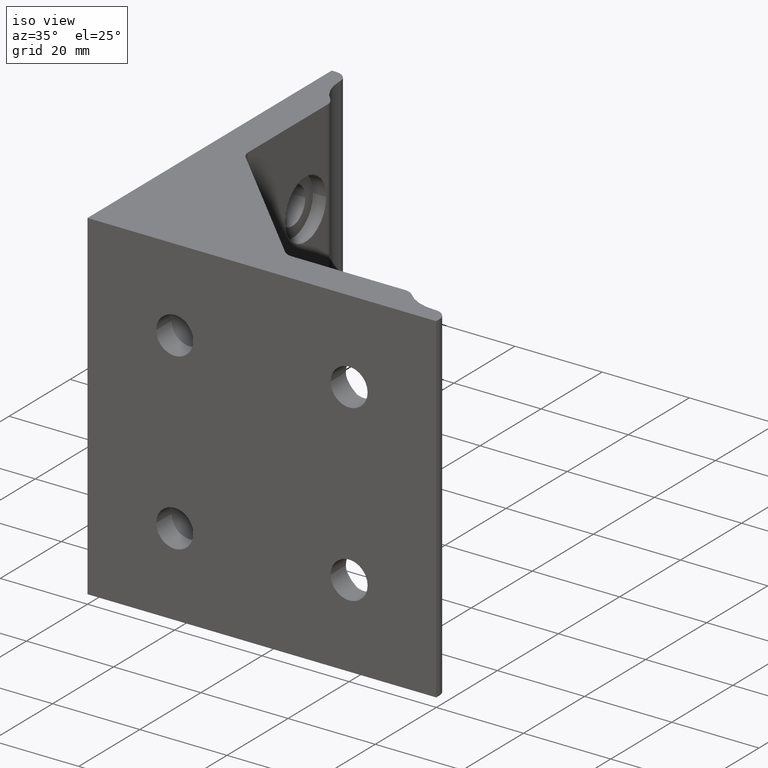
[diagram: clean part render]
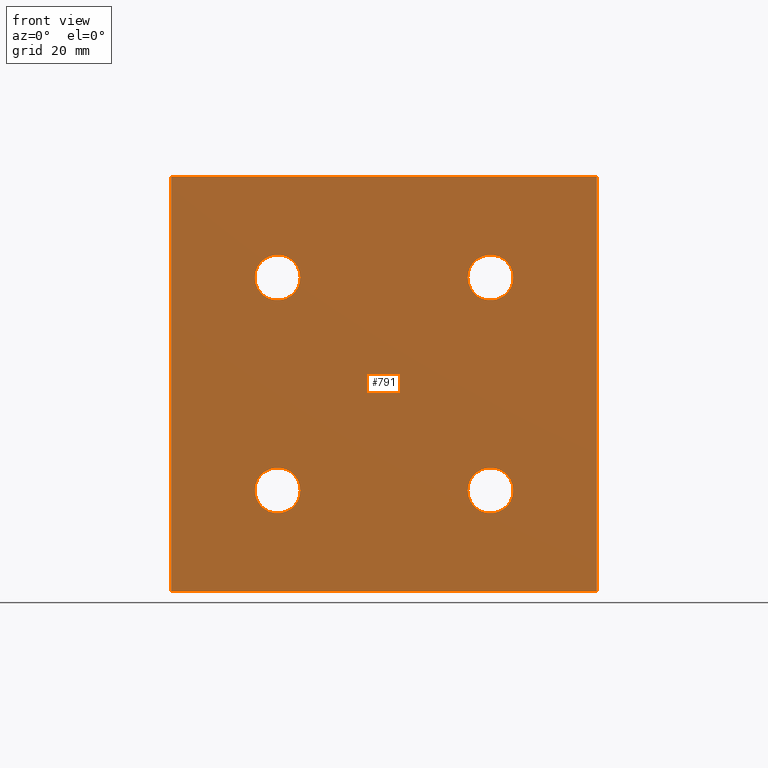
[diagram: tour spotlight — one face highlighted and labeled with its STEP entity id]
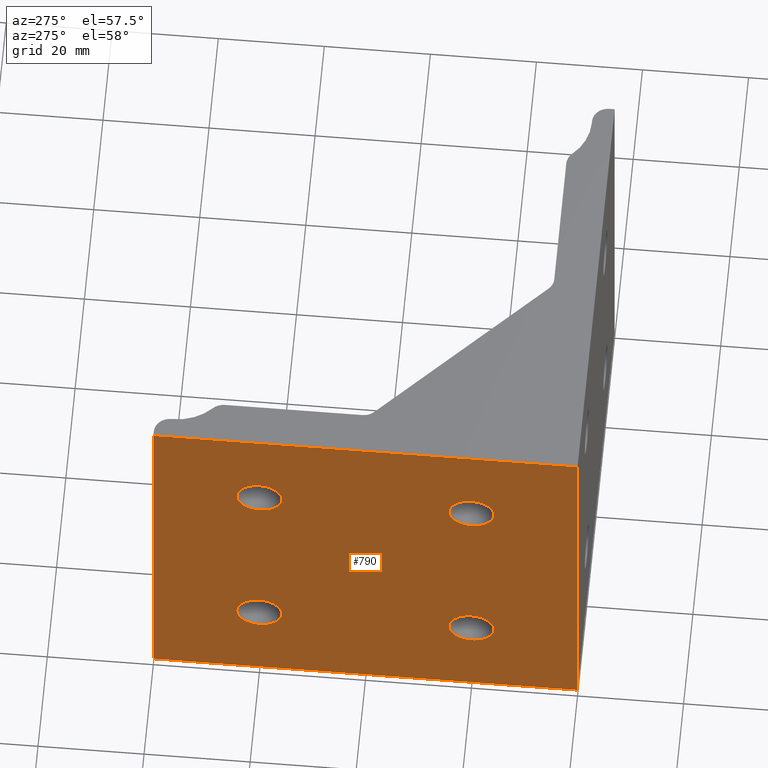
[diagram: tour spotlight — one face highlighted and labeled with its STEP entity id]
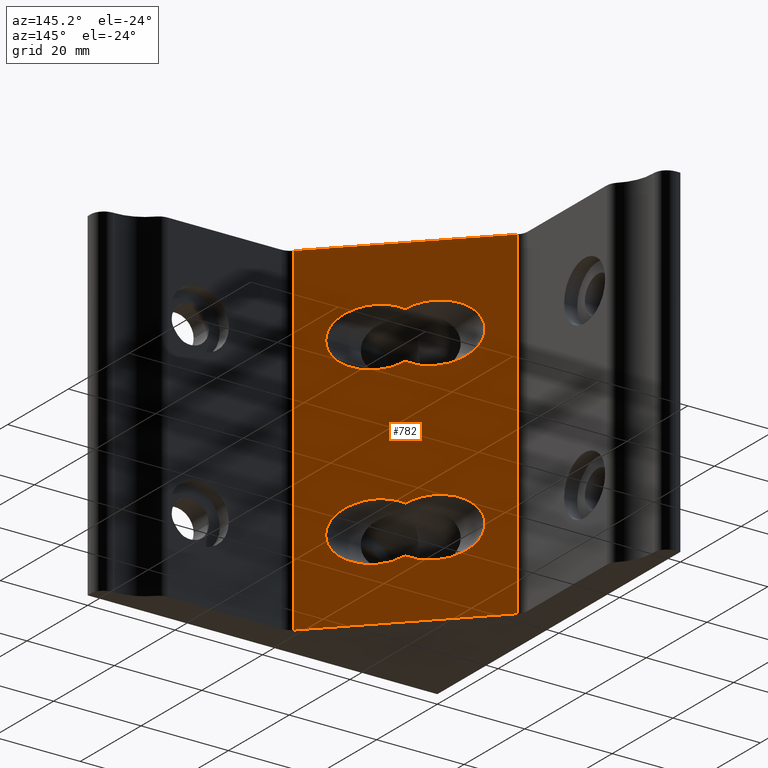
[diagram: tour spotlight — one face highlighted and labeled with its STEP entity id]
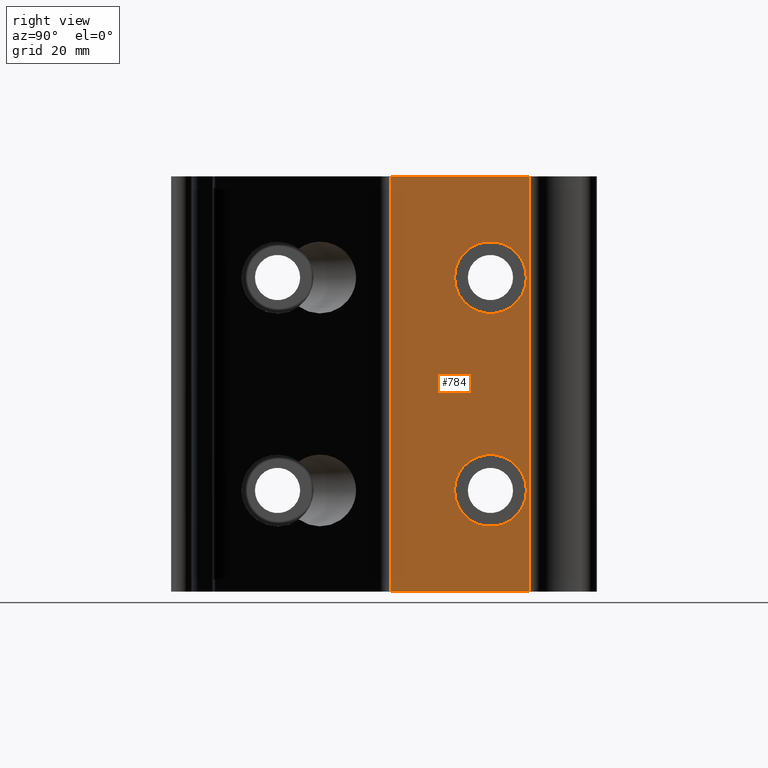
[diagram: tour spotlight — one face highlighted and labeled with its STEP entity id]
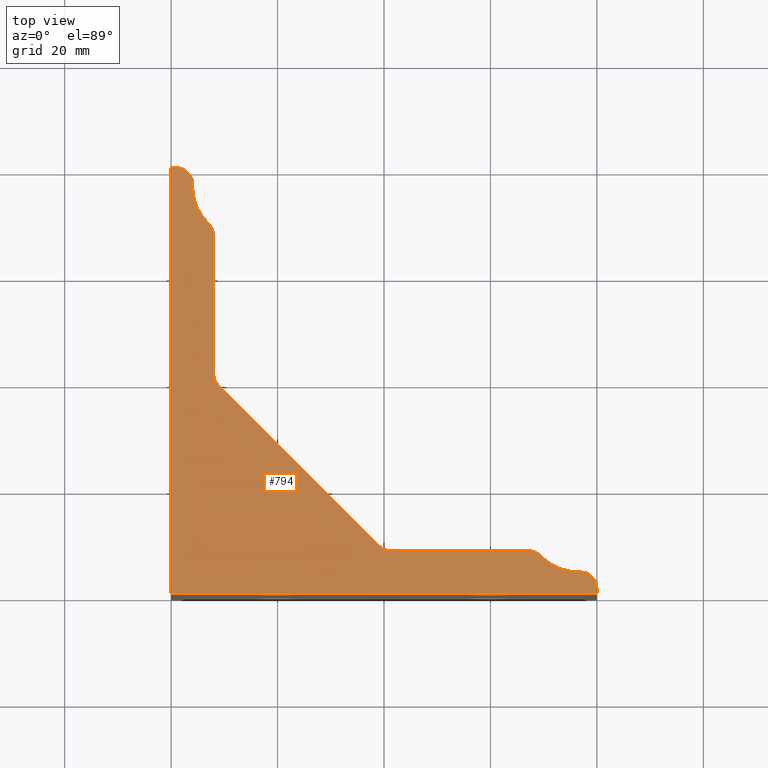
[diagram: tour spotlight — one face highlighted and labeled with its STEP entity id]
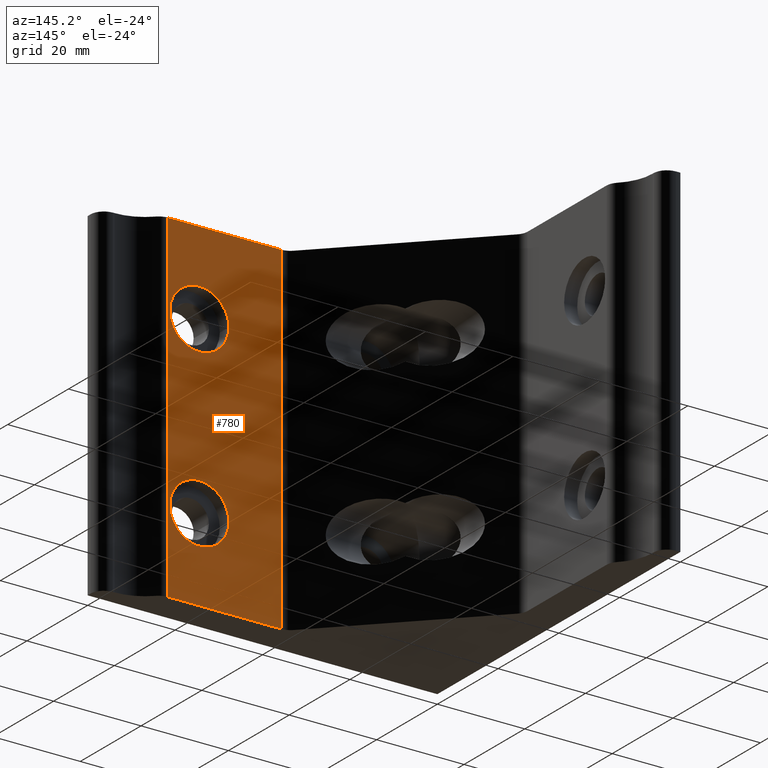
[diagram: tour spotlight — one face highlighted and labeled with its STEP entity id]
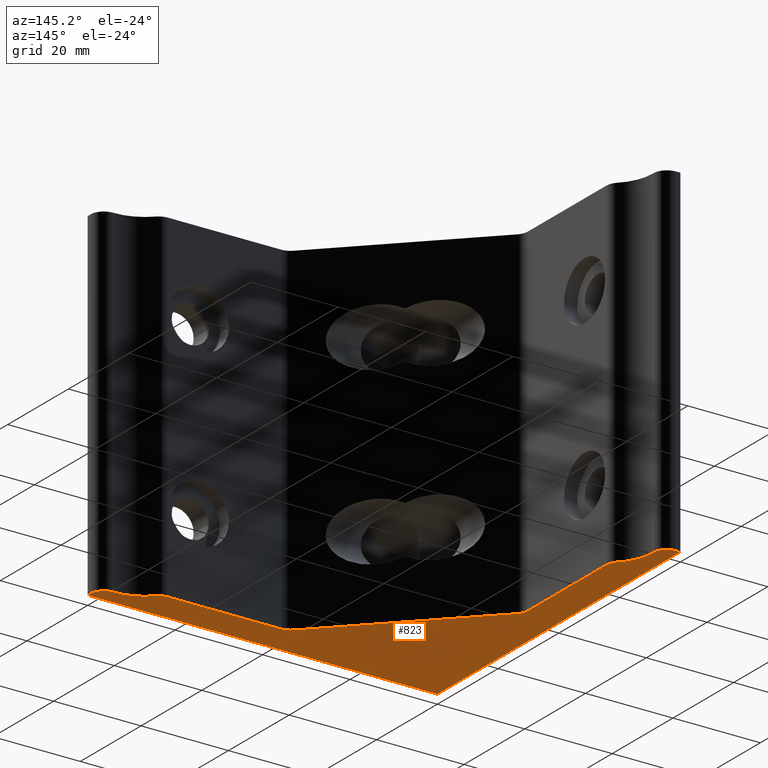
[diagram: tour spotlight — one face highlighted and labeled with its STEP entity id]
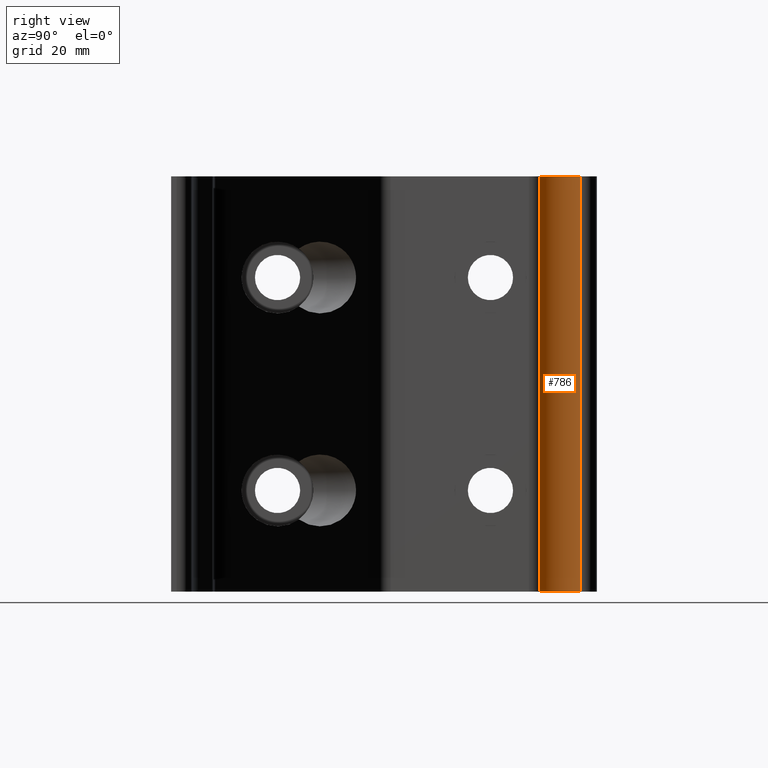
[diagram: tour spotlight — one face highlighted and labeled with its STEP entity id]
A machine part: a face-by-face anatomy tour. The part has 47 B-rep faces; the first image is the clean iso view, then the 8 largest visible faces are spotlighted one at a time (largest first), each with its STEP entity span.

Face 1 — front view, entity #791. In plain terms, the highlighted planar face has unit normal (0, -1, 0).
Definition (entity closure, byte-faithful):
#43=FACE_BOUND('',#199,.T.);
#44=FACE_BOUND('',#200,.T.);
#45=FACE_BOUND('',#201,.T.);
#46=FACE_BOUND('',#202,.T.);
#77=CIRCLE('',#888,4.24999905648303);
#78=CIRCLE('',#889,4.24999905648303);
#79=CIRCLE('',#890,4.24999905648303);
#80=CIRCLE('',#891,4.24999905648303);
#141=FACE_OUTER_BOUND('',#198,.T.);
#198=EDGE_LOOP('',(#600,#601,#602,#603));
#199=EDGE_LOOP('',(#604));
#200=EDGE_LOOP('',(#605));
#201=EDGE_LOOP('',(#606));
#202=EDGE_LOOP('',(#607));
#270=LINE('',#1329,#321);
#272=LINE('',#1341,#323);
#273=LINE('',#1343,#324);
#274=LINE('',#1344,#325);
#321=VECTOR('',#1057,78.);
#323=VECTOR('',#1069,79.9974926075425);
#324=VECTOR('',#1070,78.);
#325=VECTOR('',#1071,79.9974926075425);
#381=VERTEX_POINT('',#1326);
#382=VERTEX_POINT('',#1328);
#387=VERTEX_POINT('',#1340);
#388=VERTEX_POINT('',#1342);
#389=VERTEX_POINT('',#1345);
#390=VERTEX_POINT('',#1347);
#391=VERTEX_POINT('',#1349);
#392=VERTEX_POINT('',#1351);
#468=EDGE_CURVE('',#381,#382,#270,.T.);
#474=EDGE_CURVE('',#381,#387,#272,.T.);
#475=EDGE_CURVE('',#387,#388,#273,.T.);
#476=EDGE_CURVE('',#382,#388,#274,.T.);
#477=EDGE_CURVE('',#389,#389,#77,.T.);
#478=EDGE_CURVE('',#390,#390,#78,.T.);
#479=EDGE_CURVE('',#391,#391,#79,.T.);
#480=EDGE_CURVE('',#392,#392,#80,.T.);
#600=ORIENTED_EDGE('',*,*,#468,.F.);
#601=ORIENTED_EDGE('',*,*,#474,.T.);
#602=ORIENTED_EDGE('',*,*,#475,.T.);
#603=ORIENTED_EDGE('',*,*,#476,.F.);
#604=ORIENTED_EDGE('',*,*,#477,.F.);
#605=ORIENTED_EDGE('',*,*,#478,.F.);
#606=ORIENTED_EDGE('',*,*,#479,.F.);
#607=ORIENTED_EDGE('',*,*,#480,.F.);
#765=PLANE('',#887);
#791=ADVANCED_FACE('',(#141,#43,#44,#45,#46),#765,.T.);
#887=AXIS2_PLACEMENT_3D('',#1339,#1067,#1068);
#888=AXIS2_PLACEMENT_3D('',#1346,#1072,#1073);
#889=AXIS2_PLACEMENT_3D('',#1348,#1074,#1075);
#890=AXIS2_PLACEMENT_3D('',#1350,#1076,#1077);
#891=AXIS2_PLACEMENT_3D('',#1352,#1078,#1079);
#1057=DIRECTION('',(0.,0.,1.));
#1067=DIRECTION('center_axis',(0.,-1.,0.));
#1068=DIRECTION('ref_axis',(0.,0.,-1.));
#1069=DIRECTION('',(1.,0.,0.));
#1070=DIRECTION('',(0.,0.,1.));
#1071=DIRECTION('',(1.,0.,0.));
#1072=DIRECTION('center_axis',(0.,-1.,0.));
#1073=DIRECTION('ref_axis',(1.,0.,0.));
#1074=DIRECTION('center_axis',(0.,-1.,0.));
#1075=DIRECTION('ref_axis',(1.,0.,0.));
#1076=DIRECTION('center_axis',(0.,-1.,0.));
#1077=DIRECTION('ref_axis',(1.,0.,0.));
#1078=DIRECTION('center_axis',(0.,-1.,0.));
#1079=DIRECTION('ref_axis',(1.,0.,0.));
#1326=CARTESIAN_POINT('',(0.,0.,-39.));
#1328=CARTESIAN_POINT('',(0.,0.,39.));
#1329=CARTESIAN_POINT('',(0.,0.,-39.));
#1339=CARTESIAN_POINT('Origin',(0.,0.,-78.9999738035281));
#1340=CARTESIAN_POINT('',(79.9974926075425,0.,-39.));
#1341=CARTESIAN_POINT('',(0.,0.,-39.));
#1342=CARTESIAN_POINT('',(79.9974926075425,0.,39.));
#1343=CARTESIAN_POINT('',(79.9974926075425,0.,-39.));
#1344=CARTESIAN_POINT('',(0.,0.,39.));
#1345=CARTESIAN_POINT('',(55.7499876232769,0.,20.0000042180759));
#1346=CARTESIAN_POINT('Origin',(59.9999866797599,0.,20.0000042180759));
#1347=CARTESIAN_POINT('',(55.7499876232769,0.,-19.999986901764));
#1348=CARTESIAN_POINT('Origin',(59.9999866797599,0.,-19.999986901764));
#1349=CARTESIAN_POINT('',(15.7499965034369,0.,20.0000042180759));
#1350=CARTESIAN_POINT('Origin',(19.99999555992,0.,20.0000042180759));
#1351=CARTESIAN_POINT('',(15.7499965034369,0.,-19.999986901764));
#1352=CARTESIAN_POINT('Origin',(19.99999555992,0.,-19.999986901764));

Face 2 — auxiliary view, entity #790. In plain terms, the highlighted planar face has unit normal (-1, 0, 0).
Definition (entity closure, byte-faithful):
#39=FACE_BOUND('',#194,.T.);
#40=FACE_BOUND('',#195,.T.);
#41=FACE_BOUND('',#196,.T.);
#42=FACE_BOUND('',#197,.T.);
#73=CIRCLE('',#883,4.24999905648292);
#74=CIRCLE('',#884,4.24999905648292);
#75=CIRCLE('',#885,4.24999905648292);
#76=CIRCLE('',#886,4.24999905648292);
#140=FACE_OUTER_BOUND('',#193,.T.);
#193=EDGE_LOOP('',(#592,#593,#594,#595));
#194=EDGE_LOOP('',(#596));
#195=EDGE_LOOP('',(#597));
#196=EDGE_LOOP('',(#598));
#197=EDGE_LOOP('',(#599));
#267=LINE('',#1323,#318);
#269=LINE('',#1327,#320);
#270=LINE('',#1329,#321);
#271=LINE('',#1330,#322);
#318=VECTOR('',#1052,78.);
#320=VECTOR('',#1056,79.9999822396803);
#321=VECTOR('',#1057,78.);
#322=VECTOR('',#1058,79.9999822396803);
#379=VERTEX_POINT('',#1320);
#380=VERTEX_POINT('',#1322);
#381=VERTEX_POINT('',#1326);
#382=VERTEX_POINT('',#1328);
#383=VERTEX_POINT('',#1331);
#384=VERTEX_POINT('',#1333);
#385=VERTEX_POINT('',#1335);
#386=VERTEX_POINT('',#1337);
#465=EDGE_CURVE('',#379,#380,#267,.T.);
#467=EDGE_CURVE('',#381,#379,#269,.T.);
#468=EDGE_CURVE('',#381,#382,#270,.T.);
#469=EDGE_CURVE('',#380,#382,#271,.T.);
#470=EDGE_CURVE('',#383,#383,#73,.T.);
#471=EDGE_CURVE('',#384,#384,#74,.T.);
#472=EDGE_CURVE('',#385,#385,#75,.T.);
#473=EDGE_CURVE('',#386,#386,#76,.T.);
#592=ORIENTED_EDGE('',*,*,#465,.F.);
#593=ORIENTED_EDGE('',*,*,#467,.F.);
#594=ORIENTED_EDGE('',*,*,#468,.T.);
#595=ORIENTED_EDGE('',*,*,#469,.F.);
#596=ORIENTED_EDGE('',*,*,#470,.T.);
#597=ORIENTED_EDGE('',*,*,#471,.T.);
#598=ORIENTED_EDGE('',*,*,#472,.T.);
#599=ORIENTED_EDGE('',*,*,#473,.T.);
#764=PLANE('',#882);
#790=ADVANCED_FACE('',(#140,#39,#40,#41,#42),#764,.T.);
#882=AXIS2_PLACEMENT_3D('',#1325,#1054,#1055);
#883=AXIS2_PLACEMENT_3D('',#1332,#1059,#1060);
#884=AXIS2_PLACEMENT_3D('',#1334,#1061,#1062);
#885=AXIS2_PLACEMENT_3D('',#1336,#1063,#1064);
#886=AXIS2_PLACEMENT_3D('',#1338,#1065,#1066);
#1052=DIRECTION('',(0.,0.,1.));
#1054=DIRECTION('center_axis',(-1.,0.,0.));
#1055=DIRECTION('ref_axis',(0.,0.,1.));
#1056=DIRECTION('',(0.,1.,0.));
#1057=DIRECTION('',(0.,0.,1.));
#1058=DIRECTION('',(0.,-1.,0.));
#1059=DIRECTION('center_axis',(1.,0.,0.));
#1060=DIRECTION('ref_axis',(0.,-1.,0.));
#1061=DIRECTION('center_axis',(1.,0.,0.));
#1062=DIRECTION('ref_axis',(0.,-1.,0.));
#1063=DIRECTION('center_axis',(1.,0.,0.));
#1064=DIRECTION('ref_axis',(0.,-1.,0.));
#1065=DIRECTION('center_axis',(1.,0.,0.));
#1066=DIRECTION('ref_axis',(0.,-1.,0.));
#1320=CARTESIAN_POINT('',(0.,79.9999822396803,-39.));
#1322=CARTESIAN_POINT('',(0.,79.9999822396803,39.));
#1323=CARTESIAN_POINT('',(0.,79.9999822396803,-39.));
#1325=CARTESIAN_POINT('Origin',(0.,79.9999822396803,-78.9999738035281));
#1326=CARTESIAN_POINT('',(0.,0.,-39.));
#1327=CARTESIAN_POINT('',(0.,0.,-39.));
#1328=CARTESIAN_POINT('',(0.,0.,39.));
#1329=CARTESIAN_POINT('',(0.,0.,-39.));
#1330=CARTESIAN_POINT('',(0.,79.9999822396803,39.));
#1331=CARTESIAN_POINT('',(0.,24.249994616403,20.0000042180759));
#1332=CARTESIAN_POINT('Origin',(0.,19.9999955599201,20.0000042180759));
#1333=CARTESIAN_POINT('',(0.,24.249994616403,-19.999986901764));
#1334=CARTESIAN_POINT('Origin',(0.,19.9999955599201,-19.999986901764));
#1335=CARTESIAN_POINT('',(0.,64.2499857362432,20.0000042180759));
#1336=CARTESIAN_POINT('Origin',(0.,59.9999866797602,20.0000042180759));
#1337=CARTESIAN_POINT('',(0.,64.2499857362432,-19.999986901764));
#1338=CARTESIAN_POINT('Origin',(0.,59.9999866797602,-19.999986901764));

Face 3 — auxiliary view, entity #782. In plain terms, the highlighted planar face has unit normal (0.7071, 0.7071, 0).
Definition (entity closure, byte-faithful):
#15=ELLIPSE('',#861,9.54593943385778,6.74999850647282);
#16=ELLIPSE('',#862,9.54593942677539,6.74999850147299);
#17=ELLIPSE('',#863,9.54593943385778,6.74999850647282);
#18=ELLIPSE('',#864,9.54593942677539,6.74999850147299);
#35=FACE_BOUND('',#182,.T.);
#36=FACE_BOUND('',#183,.T.);
#132=FACE_OUTER_BOUND('',#181,.T.);
#181=EDGE_LOOP('',(#554,#555,#556,#557));
#182=EDGE_LOOP('',(#558,#559));
#183=EDGE_LOOP('',(#560,#561));
#252=LINE('',#1263,#303);
#253=LINE('',#1267,#304);
#254=LINE('',#1269,#305);
#255=LINE('',#1270,#306);
#303=VECTOR('',#991,78.);
#304=VECTOR('',#996,42.7695431182399);
#305=VECTOR('',#997,78.);
#306=VECTOR('',#998,42.7695431182399);
#357=VERTEX_POINT('',#1260);
#358=VERTEX_POINT('',#1262);
#359=VERTEX_POINT('',#1266);
#360=VERTEX_POINT('',#1268);
#361=VERTEX_POINT('',#1271);
#362=VERTEX_POINT('',#1272);
#363=VERTEX_POINT('',#1275);
#364=VERTEX_POINT('',#1276);
#435=EDGE_CURVE('',#357,#358,#252,.T.);
#437=EDGE_CURVE('',#357,#359,#253,.T.);
#438=EDGE_CURVE('',#359,#360,#254,.T.);
#439=EDGE_CURVE('',#358,#360,#255,.T.);
#440=EDGE_CURVE('',#361,#362,#15,.T.);
#441=EDGE_CURVE('',#361,#362,#16,.T.);
#442=EDGE_CURVE('',#363,#364,#17,.T.);
#443=EDGE_CURVE('',#363,#364,#18,.T.);
#554=ORIENTED_EDGE('',*,*,#435,.F.);
#555=ORIENTED_EDGE('',*,*,#437,.T.);
#556=ORIENTED_EDGE('',*,*,#438,.T.);
#557=ORIENTED_EDGE('',*,*,#439,.F.);
#558=ORIENTED_EDGE('',*,*,#440,.T.);
#559=ORIENTED_EDGE('',*,*,#441,.F.);
#560=ORIENTED_EDGE('',*,*,#442,.T.);
#561=ORIENTED_EDGE('',*,*,#443,.F.);
#760=PLANE('',#860);
#782=ADVANCED_FACE('',(#132,#35,#36),#760,.T.);
#860=AXIS2_PLACEMENT_3D('',#1265,#994,#995);
#861=AXIS2_PLACEMENT_3D('',#1273,#999,#1000);
#862=AXIS2_PLACEMENT_3D('',#1274,#1001,#1002);
#863=AXIS2_PLACEMENT_3D('',#1277,#1003,#1004);
#864=AXIS2_PLACEMENT_3D('',#1278,#1005,#1006);
#991=DIRECTION('',(0.,0.,1.));
#994=DIRECTION('center_axis',(0.70710678118612,0.707106781186975,0.));
#995=DIRECTION('ref_axis',(0.,0.,-1.));
#996=DIRECTION('',(-0.707106781186973,0.707106781186122,0.));
#997=DIRECTION('',(0.,0.,1.));
#998=DIRECTION('',(-0.707106781186975,0.70710678118612,0.));
#999=DIRECTION('center_axis',(-0.70710678118612,-0.707106781186975,0.));
#1000=DIRECTION('ref_axis',(0.707106781186975,-0.70710678118612,0.));
#1001=DIRECTION('center_axis',(0.70710678118612,0.707106781186975,0.));
#1002=DIRECTION('ref_axis',(-0.707106781186975,0.70710678118612,0.));
#1003=DIRECTION('center_axis',(-0.70710678118612,-0.707106781186975,0.));
#1004=DIRECTION('ref_axis',(0.707106781186975,-0.70710678118612,0.));
#1005=DIRECTION('center_axis',(0.70710678118612,0.707106781186975,0.));
#1006=DIRECTION('ref_axis',(-0.707106781186975,0.70710678118612,0.));
#1260=CARTESIAN_POINT('',(39.1213597673088,8.87867767341004,-39.));
#1262=CARTESIAN_POINT('',(39.1213597673088,8.87867767341004,39.));
#1263=CARTESIAN_POINT('',(39.1213597673088,8.87867767341004,-39.));
#1265=CARTESIAN_POINT('Origin',(39.1213597673088,8.87867767341004,-78.9999738035281));
#1266=CARTESIAN_POINT('',(8.87872580013277,39.1213116405497,-39.));
#1267=CARTESIAN_POINT('',(39.1213597673088,8.87867767341004,-39.));
#1268=CARTESIAN_POINT('',(8.87872580013277,39.1213116405497,39.));
#1269=CARTESIAN_POINT('',(8.87872580013277,39.1213116405497,-39.));
#1270=CARTESIAN_POINT('',(39.1213597673088,8.87867767341004,39.));
#1271=CARTESIAN_POINT('',(24.000018716798,24.000018723202,14.5628823217393));
#1272=CARTESIAN_POINT('',(24.0000187166723,24.0000187232846,25.4371261145939));
#1273=CARTESIAN_POINT('Origin',(28.0000418807858,19.9999955599201,20.0000042180759));
#1274=CARTESIAN_POINT('Origin',(19.99999555992,28.0000418807758,20.0000042180759));
#1275=CARTESIAN_POINT('',(24.000018716798,24.000018723202,-25.4371087981006));
#1276=CARTESIAN_POINT('',(24.0000187166723,24.0000187232846,-14.562865005246));
#1277=CARTESIAN_POINT('Origin',(28.0000418807858,19.9999955599201,-19.999986901764));
#1278=CARTESIAN_POINT('Origin',(19.99999555992,28.0000418807758,-19.999986901764));

Face 4 — right view, entity #784. In plain terms, the highlighted planar face has unit normal (1, 0, 0).
Definition (entity closure, byte-faithful):
#37=FACE_BOUND('',#186,.T.);
#38=FACE_BOUND('',#187,.T.);
#65=CIRCLE('',#869,6.74999850147287);
#66=CIRCLE('',#870,6.74999850147287);
#134=FACE_OUTER_BOUND('',#185,.T.);
#185=EDGE_LOOP('',(#566,#567,#568,#569));
#186=EDGE_LOOP('',(#570));
#187=EDGE_LOOP('',(#571));
#256=LINE('',#1283,#307);
#257=LINE('',#1287,#308);
#258=LINE('',#1289,#309);
#259=LINE('',#1290,#310);
#307=VECTOR('',#1011,78.);
#308=VECTOR('',#1016,25.9866052446087);
#309=VECTOR('',#1017,78.);
#310=VECTOR('',#1018,25.9866052446087);
#365=VERTEX_POINT('',#1280);
#366=VERTEX_POINT('',#1282);
#367=VERTEX_POINT('',#1286);
#368=VERTEX_POINT('',#1288);
#369=VERTEX_POINT('',#1291);
#370=VERTEX_POINT('',#1293);
#445=EDGE_CURVE('',#365,#366,#256,.T.);
#447=EDGE_CURVE('',#365,#367,#257,.T.);
#448=EDGE_CURVE('',#367,#368,#258,.T.);
#449=EDGE_CURVE('',#366,#368,#259,.T.);
#450=EDGE_CURVE('',#369,#369,#65,.T.);
#451=EDGE_CURVE('',#370,#370,#66,.T.);
#566=ORIENTED_EDGE('',*,*,#445,.F.);
#567=ORIENTED_EDGE('',*,*,#447,.T.);
#568=ORIENTED_EDGE('',*,*,#448,.T.);
#569=ORIENTED_EDGE('',*,*,#449,.F.);
#570=ORIENTED_EDGE('',*,*,#450,.T.);
#571=ORIENTED_EDGE('',*,*,#451,.T.);
#761=PLANE('',#868);
#784=ADVANCED_FACE('',(#134,#37,#38),#761,.T.);
#868=AXIS2_PLACEMENT_3D('',#1285,#1014,#1015);
#869=AXIS2_PLACEMENT_3D('',#1292,#1019,#1020);
#870=AXIS2_PLACEMENT_3D('',#1294,#1021,#1022);
#1011=DIRECTION('',(0.,0.,1.));
#1014=DIRECTION('center_axis',(1.,0.,0.));
#1015=DIRECTION('ref_axis',(0.,0.,-1.));
#1016=DIRECTION('',(0.,1.,0.));
#1017=DIRECTION('',(0.,0.,1.));
#1018=DIRECTION('',(0.,1.,0.));
#1019=DIRECTION('center_axis',(-1.,0.,0.));
#1020=DIRECTION('ref_axis',(0.,-1.,0.));
#1021=DIRECTION('center_axis',(-1.,0.,0.));
#1022=DIRECTION('ref_axis',(0.,-1.,0.));
#1280=CARTESIAN_POINT('',(8.00004633687843,41.2426315177154,-39.));
#1282=CARTESIAN_POINT('',(8.00004633687843,41.2426315177154,39.));
#1283=CARTESIAN_POINT('',(8.00004633687843,41.2426315177154,-39.));
#1285=CARTESIAN_POINT('Origin',(8.00004633687843,41.2426315177154,-78.9999738035281));
#1286=CARTESIAN_POINT('',(8.00004633687843,67.229236762324,-39.));
#1287=CARTESIAN_POINT('',(8.00004633687843,41.2426315177154,-39.));
#1288=CARTESIAN_POINT('',(8.00004633687843,67.229236762324,39.));
#1289=CARTESIAN_POINT('',(8.00004633687843,67.229236762324,-39.));
#1290=CARTESIAN_POINT('',(8.00004633687843,41.2426315177154,39.));
#1291=CARTESIAN_POINT('',(8.00004633687843,66.7499851812331,20.0000042180759));
#1292=CARTESIAN_POINT('Origin',(8.00004633687843,59.9999866797602,20.0000042180759));
#1293=CARTESIAN_POINT('',(8.00004633687843,66.7499851812331,-19.999986901764));
#1294=CARTESIAN_POINT('Origin',(8.00004633687843,59.9999866797602,-19.999986901764));

Face 5 — top view, entity #794. In plain terms, the highlighted planar face has unit normal (0, 0, 1).
Definition (entity closure, byte-faithful):
#56=CIRCLE('',#850,9.9999977120583);
#58=CIRCLE('',#853,2.99999932597575);
#62=CIRCLE('',#859,2.99999931386152);
#64=CIRCLE('',#867,2.99999934041716);
#68=CIRCLE('',#873,2.9999992689053);
#70=CIRCLE('',#876,10.0018587542886);
#72=CIRCLE('',#880,2.99999933691197);
#81=CIRCLE('',#894,2.99999934797051);
#144=FACE_OUTER_BOUND('',#205,.T.);
#205=EDGE_LOOP('',(#616,#617,#618,#619,#620,#621,#622,#623,#624,#625,#626,
#627,#628,#629,#630,#631,#632));
#246=LINE('',#1236,#297);
#251=LINE('',#1254,#302);
#255=LINE('',#1270,#306);
#259=LINE('',#1290,#310);
#264=LINE('',#1312,#315);
#268=LINE('',#1324,#319);
#271=LINE('',#1330,#322);
#274=LINE('',#1344,#325);
#277=LINE('',#1358,#328);
#297=VECTOR('',#963,0.385823411633615);
#302=VECTOR('',#982,25.986605231272);
#306=VECTOR('',#998,42.7695431182399);
#310=VECTOR('',#1018,25.9866052446087);
#315=VECTOR('',#1041,0.193682960054034);
#319=VECTOR('',#1053,0.999253008161645);
#322=VECTOR('',#1058,79.9999822396803);
#325=VECTOR('',#1071,79.9974926075425);
#328=VECTOR('',#1084,0.999156630858579);
#346=VERTEX_POINT('',#1230);
#348=VERTEX_POINT('',#1234);
#350=VERTEX_POINT('',#1240);
#352=VERTEX_POINT('',#1246);
#354=VERTEX_POINT('',#1252);
#358=VERTEX_POINT('',#1262);
#360=VERTEX_POINT('',#1268);
#366=VERTEX_POINT('',#1282);
#368=VERTEX_POINT('',#1288);
#372=VERTEX_POINT('',#1298);
#374=VERTEX_POINT('',#1304);
#376=VERTEX_POINT('',#1310);
#378=VERTEX_POINT('',#1316);
#380=VERTEX_POINT('',#1322);
#382=VERTEX_POINT('',#1328);
#388=VERTEX_POINT('',#1342);
#394=VERTEX_POINT('',#1356);
#422=EDGE_CURVE('',#346,#348,#246,.T.);
#425=EDGE_CURVE('',#348,#350,#56,.T.);
#428=EDGE_CURVE('',#350,#352,#58,.T.);
#431=EDGE_CURVE('',#352,#354,#251,.T.);
#436=EDGE_CURVE('',#354,#358,#62,.T.);
#439=EDGE_CURVE('',#358,#360,#255,.T.);
#446=EDGE_CURVE('',#360,#366,#64,.T.);
#449=EDGE_CURVE('',#366,#368,#259,.T.);
#454=EDGE_CURVE('',#368,#372,#68,.T.);
#457=EDGE_CURVE('',#372,#374,#70,.T.);
#460=EDGE_CURVE('',#374,#376,#264,.T.);
#463=EDGE_CURVE('',#376,#378,#72,.T.);
#466=EDGE_CURVE('',#378,#380,#268,.T.);
#469=EDGE_CURVE('',#380,#382,#271,.T.);
#476=EDGE_CURVE('',#382,#388,#274,.T.);
#483=EDGE_CURVE('',#388,#394,#277,.T.);
#484=EDGE_CURVE('',#394,#346,#81,.T.);
#616=ORIENTED_EDGE('',*,*,#422,.T.);
#617=ORIENTED_EDGE('',*,*,#425,.T.);
#618=ORIENTED_EDGE('',*,*,#428,.T.);
#619=ORIENTED_EDGE('',*,*,#431,.T.);
#620=ORIENTED_EDGE('',*,*,#436,.T.);
#621=ORIENTED_EDGE('',*,*,#439,.T.);
#622=ORIENTED_EDGE('',*,*,#446,.T.);
#623=ORIENTED_EDGE('',*,*,#449,.T.);
#624=ORIENTED_EDGE('',*,*,#454,.T.);
#625=ORIENTED_EDGE('',*,*,#457,.T.);
#626=ORIENTED_EDGE('',*,*,#460,.T.);
#627=ORIENTED_EDGE('',*,*,#463,.T.);
#628=ORIENTED_EDGE('',*,*,#466,.T.);
#629=ORIENTED_EDGE('',*,*,#469,.T.);
#630=ORIENTED_EDGE('',*,*,#476,.T.);
#631=ORIENTED_EDGE('',*,*,#483,.T.);
#632=ORIENTED_EDGE('',*,*,#484,.T.);
#767=PLANE('',#896);
#794=ADVANCED_FACE('',(#144),#767,.T.);
#850=AXIS2_PLACEMENT_3D('',#1242,#969,#970);
#853=AXIS2_PLACEMENT_3D('',#1248,#976,#977);
#859=AXIS2_PLACEMENT_3D('',#1264,#992,#993);
#867=AXIS2_PLACEMENT_3D('',#1284,#1012,#1013);
#873=AXIS2_PLACEMENT_3D('',#1300,#1028,#1029);
#876=AXIS2_PLACEMENT_3D('',#1306,#1035,#1036);
#880=AXIS2_PLACEMENT_3D('',#1318,#1047,#1048);
#894=AXIS2_PLACEMENT_3D('',#1360,#1087,#1088);
#896=AXIS2_PLACEMENT_3D('',#1362,#1091,#1092);
#963=DIRECTION('',(-1.,0.,0.));
#969=DIRECTION('center_axis',(0.,0.,-1.));
#970=DIRECTION('ref_axis',(-0.721664650576163,-0.692242827415918,0.));
#976=DIRECTION('center_axis',(0.,0.,1.));
#977=DIRECTION('ref_axis',(0.,1.,0.));
#982=DIRECTION('',(-1.,0.,0.));
#992=DIRECTION('center_axis',(0.,0.,-1.));
#993=DIRECTION('ref_axis',(-0.707106781186112,-0.707106781186983,0.));
#998=DIRECTION('',(-0.707106781186975,0.70710678118612,0.));
#1012=DIRECTION('center_axis',(0.,0.,-1.));
#1013=DIRECTION('ref_axis',(-1.,0.,0.));
#1018=DIRECTION('',(0.,1.,0.));
#1028=DIRECTION('center_axis',(0.,0.,1.));
#1029=DIRECTION('ref_axis',(1.,0.,0.));
#1035=DIRECTION('center_axis',(0.,0.,-1.));
#1036=DIRECTION('ref_axis',(-0.999809098298205,0.019538857697678,0.));
#1041=DIRECTION('',(0.,1.,0.));
#1047=DIRECTION('center_axis',(0.,0.,1.));
#1048=DIRECTION('ref_axis',(1.,0.,0.));
#1053=DIRECTION('',(-1.,0.,0.));
#1058=DIRECTION('',(0.,-1.,0.));
#1071=DIRECTION('',(1.,0.,0.));
#1084=DIRECTION('',(0.,1.,0.));
#1087=DIRECTION('center_axis',(0.,0.,1.));
#1088=DIRECTION('ref_axis',(1.,0.,0.));
#1091=DIRECTION('center_axis',(0.,0.,1.));
#1092=DIRECTION('ref_axis',(1.,0.,0.));
#1230=CARTESIAN_POINT('',(76.9967465885436,3.99915588590966,39.));
#1234=CARTESIAN_POINT('',(76.61092317691,3.99915588590966,39.));
#1236=CARTESIAN_POINT('',(76.9967465885436,3.99915588590966,39.));
#1240=CARTESIAN_POINT('',(69.3942783222751,7.07672690762002,39.));
#1242=CARTESIAN_POINT('Origin',(76.6109231769101,13.999153597968,39.));
#1246=CARTESIAN_POINT('',(67.229284856966,7.99999821793654,39.));
#1248=CARTESIAN_POINT('Origin',(67.229284856966,4.99999889196079,39.));
#1252=CARTESIAN_POINT('',(41.242679625694,7.99999821793608,39.));
#1254=CARTESIAN_POINT('',(67.229284856966,7.99999821793654,39.));
#1262=CARTESIAN_POINT('',(39.1213597673088,8.87867767341004,39.));
#1264=CARTESIAN_POINT('Origin',(41.242679625694,10.9999975317978,39.));
#1268=CARTESIAN_POINT('',(8.87872580013277,39.1213116405497,39.));
#1270=CARTESIAN_POINT('',(39.1213597673088,8.87867767341004,39.));
#1282=CARTESIAN_POINT('',(8.00004633687843,41.2426315177154,39.));
#1284=CARTESIAN_POINT('Origin',(11.0000456772956,41.2426315177154,39.));
#1288=CARTESIAN_POINT('',(8.00004633687843,67.229236762324,39.));
#1290=CARTESIAN_POINT('',(8.00004633687843,41.2426315177154,39.));
#1298=CARTESIAN_POINT('',(7.14266234796765,69.3290451762909,39.));
#1300=CARTESIAN_POINT('Origin',(5.00004706797313,67.229236762324,39.));
#1304=CARTESIAN_POINT('',(3.99925234507089,76.8062999427143,39.));
#1306=CARTESIAN_POINT('Origin',(13.9992017275022,76.610875047802,39.));
#1310=CARTESIAN_POINT('',(3.99925234507089,76.9999829027684,39.));
#1312=CARTESIAN_POINT('',(3.99925234507089,76.8062999427143,39.));
#1316=CARTESIAN_POINT('',(0.999253008161645,79.9999822396803,39.));
#1318=CARTESIAN_POINT('Origin',(0.999253008158917,76.9999829027684,39.));
#1322=CARTESIAN_POINT('',(0.,79.9999822396803,39.));
#1324=CARTESIAN_POINT('',(0.999253008161645,79.9999822396803,39.));
#1328=CARTESIAN_POINT('',(0.,0.,39.));
#1330=CARTESIAN_POINT('',(0.,79.9999822396803,39.));
#1342=CARTESIAN_POINT('',(79.9974926075425,0.,39.));
#1344=CARTESIAN_POINT('',(0.,0.,39.));
#1356=CARTESIAN_POINT('',(79.9974926075425,0.999156630858579,39.));
#1358=CARTESIAN_POINT('',(79.9974926075425,0.,39.));
#1360=CARTESIAN_POINT('Origin',(76.997493259572,0.999156630858579,39.));
#1362=CARTESIAN_POINT('Origin',(-7.99975399126106,-8.00000295429663,39.));

Face 6 — auxiliary view, entity #780. In plain terms, the highlighted planar face has unit normal (0, 1, 0).
Definition (entity closure, byte-faithful):
#33=FACE_BOUND('',#178,.T.);
#34=FACE_BOUND('',#179,.T.);
#59=CIRCLE('',#855,6.7499985014731);
#60=CIRCLE('',#856,6.7499985014731);
#130=FACE_OUTER_BOUND('',#177,.T.);
#177=EDGE_LOOP('',(#544,#545,#546,#547));
#178=EDGE_LOOP('',(#548));
#179=EDGE_LOOP('',(#549));
#248=LINE('',#1247,#299);
#249=LINE('',#1251,#300);
#250=LINE('',#1253,#301);
#251=LINE('',#1254,#302);
#299=VECTOR('',#975,78.);
#300=VECTOR('',#980,25.986605231272);
#301=VECTOR('',#981,78.);
#302=VECTOR('',#982,25.986605231272);
#351=VERTEX_POINT('',#1244);
#352=VERTEX_POINT('',#1246);
#353=VERTEX_POINT('',#1250);
#354=VERTEX_POINT('',#1252);
#355=VERTEX_POINT('',#1255);
#356=VERTEX_POINT('',#1257);
#427=EDGE_CURVE('',#351,#352,#248,.T.);
#429=EDGE_CURVE('',#351,#353,#249,.T.);
#430=EDGE_CURVE('',#353,#354,#250,.T.);
#431=EDGE_CURVE('',#352,#354,#251,.T.);
#432=EDGE_CURVE('',#355,#355,#59,.T.);
#433=EDGE_CURVE('',#356,#356,#60,.T.);
#544=ORIENTED_EDGE('',*,*,#427,.F.);
#545=ORIENTED_EDGE('',*,*,#429,.T.);
#546=ORIENTED_EDGE('',*,*,#430,.T.);
#547=ORIENTED_EDGE('',*,*,#431,.F.);
#548=ORIENTED_EDGE('',*,*,#432,.F.);
#549=ORIENTED_EDGE('',*,*,#433,.F.);
#759=PLANE('',#854);
#780=ADVANCED_FACE('',(#130,#33,#34),#759,.T.);
#854=AXIS2_PLACEMENT_3D('',#1249,#978,#979);
#855=AXIS2_PLACEMENT_3D('',#1256,#983,#984);
#856=AXIS2_PLACEMENT_3D('',#1258,#985,#986);
#975=DIRECTION('',(0.,0.,1.));
#978=DIRECTION('center_axis',(0.,1.,0.));
#979=DIRECTION('ref_axis',(0.,0.,1.));
#980=DIRECTION('',(-1.,0.,0.));
#981=DIRECTION('',(0.,0.,1.));
#982=DIRECTION('',(-1.,0.,0.));
#983=DIRECTION('center_axis',(0.,1.,0.));
#984=DIRECTION('ref_axis',(1.,0.,0.));
#985=DIRECTION('center_axis',(0.,1.,0.));
#986=DIRECTION('ref_axis',(1.,0.,0.));
#1244=CARTESIAN_POINT('',(67.229284856966,7.99999821793654,-39.));
#1246=CARTESIAN_POINT('',(67.229284856966,7.99999821793654,39.));
#1247=CARTESIAN_POINT('',(67.229284856966,7.99999821793654,-39.));
#1249=CARTESIAN_POINT('Origin',(67.229284856966,7.99999821793654,-78.9999738035281));
#1250=CARTESIAN_POINT('',(41.242679625694,7.99999821793608,-39.));
#1251=CARTESIAN_POINT('',(67.229284856966,7.99999821793654,-39.));
#1252=CARTESIAN_POINT('',(41.242679625694,7.99999821793608,39.));
#1253=CARTESIAN_POINT('',(41.242679625694,7.99999821793608,-39.));
#1254=CARTESIAN_POINT('',(67.229284856966,7.99999821793654,39.));
#1255=CARTESIAN_POINT('',(53.2499881782868,7.99999821793654,20.0000042180759));
#1256=CARTESIAN_POINT('Origin',(59.9999866797599,7.99999821793654,20.0000042180759));
#1257=CARTESIAN_POINT('',(53.2499881782868,7.99999821793654,-19.999986901764));
#1258=CARTESIAN_POINT('Origin',(59.9999866797599,7.99999821793654,-19.999986901764));

Face 7 — auxiliary view, entity #823. In plain terms, the highlighted planar face has unit normal (0, 0, -1).
Definition (entity closure, byte-faithful):
#55=CIRCLE('',#849,9.9999977120583);
#57=CIRCLE('',#852,2.99999932597575);
#61=CIRCLE('',#858,2.99999931386152);
#63=CIRCLE('',#866,2.99999934041716);
#67=CIRCLE('',#872,2.9999992689053);
#69=CIRCLE('',#875,10.0018587542886);
#71=CIRCLE('',#879,2.99999933691197);
#82=CIRCLE('',#895,2.99999934797051);
#173=FACE_OUTER_BOUND('',#242,.T.);
#242=EDGE_LOOP('',(#741,#742,#743,#744,#745,#746,#747,#748,#749,#750,#751,
#752,#753,#754,#755,#756,#757));
#244=LINE('',#1233,#295);
#249=LINE('',#1251,#300);
#253=LINE('',#1267,#304);
#257=LINE('',#1287,#308);
#262=LINE('',#1309,#313);
#266=LINE('',#1321,#317);
#269=LINE('',#1327,#320);
#272=LINE('',#1341,#323);
#275=LINE('',#1355,#326);
#295=VECTOR('',#961,0.385823411633615);
#300=VECTOR('',#980,25.986605231272);
#304=VECTOR('',#996,42.7695431182399);
#308=VECTOR('',#1016,25.9866052446087);
#313=VECTOR('',#1039,0.193682960054034);
#317=VECTOR('',#1051,0.999253008161645);
#320=VECTOR('',#1056,79.9999822396803);
#323=VECTOR('',#1069,79.9974926075425);
#326=VECTOR('',#1082,0.999156630858579);
#345=VERTEX_POINT('',#1229);
#347=VERTEX_POINT('',#1232);
#349=VERTEX_POINT('',#1238);
#351=VERTEX_POINT('',#1244);
#353=VERTEX_POINT('',#1250);
#357=VERTEX_POINT('',#1260);
#359=VERTEX_POINT('',#1266);
#365=VERTEX_POINT('',#1280);
#367=VERTEX_POINT('',#1286);
#371=VERTEX_POINT('',#1296);
#373=VERTEX_POINT('',#1302);
#375=VERTEX_POINT('',#1308);
#377=VERTEX_POINT('',#1314);
#379=VERTEX_POINT('',#1320);
#381=VERTEX_POINT('',#1326);
#387=VERTEX_POINT('',#1340);
#393=VERTEX_POINT('',#1354);
#420=EDGE_CURVE('',#345,#347,#244,.T.);
#423=EDGE_CURVE('',#347,#349,#55,.T.);
#426=EDGE_CURVE('',#349,#351,#57,.T.);
#429=EDGE_CURVE('',#351,#353,#249,.T.);
#434=EDGE_CURVE('',#353,#357,#61,.T.);
#437=EDGE_CURVE('',#357,#359,#253,.T.);
#444=EDGE_CURVE('',#359,#365,#63,.T.);
#447=EDGE_CURVE('',#365,#367,#257,.T.);
#452=EDGE_CURVE('',#367,#371,#67,.T.);
#455=EDGE_CURVE('',#371,#373,#69,.T.);
#458=EDGE_CURVE('',#373,#375,#262,.T.);
#461=EDGE_CURVE('',#375,#377,#71,.T.);
#464=EDGE_CURVE('',#379,#377,#266,.T.);
#467=EDGE_CURVE('',#381,#379,#269,.T.);
#474=EDGE_CURVE('',#381,#387,#272,.T.);
#481=EDGE_CURVE('',#387,#393,#275,.T.);
#485=EDGE_CURVE('',#393,#345,#82,.T.);
#741=ORIENTED_EDGE('',*,*,#464,.T.);
#742=ORIENTED_EDGE('',*,*,#461,.F.);
#743=ORIENTED_EDGE('',*,*,#458,.F.);
#744=ORIENTED_EDGE('',*,*,#455,.F.);
#745=ORIENTED_EDGE('',*,*,#452,.F.);
#746=ORIENTED_EDGE('',*,*,#447,.F.);
#747=ORIENTED_EDGE('',*,*,#444,.F.);
#748=ORIENTED_EDGE('',*,*,#437,.F.);
#749=ORIENTED_EDGE('',*,*,#434,.F.);
#750=ORIENTED_EDGE('',*,*,#429,.F.);
#751=ORIENTED_EDGE('',*,*,#426,.F.);
#752=ORIENTED_EDGE('',*,*,#423,.F.);
#753=ORIENTED_EDGE('',*,*,#420,.F.);
#754=ORIENTED_EDGE('',*,*,#485,.F.);
#755=ORIENTED_EDGE('',*,*,#481,.F.);
#756=ORIENTED_EDGE('',*,*,#474,.F.);
#757=ORIENTED_EDGE('',*,*,#467,.T.);
#776=PLANE('',#955);
#823=ADVANCED_FACE('',(#173),#776,.T.);
#849=AXIS2_PLACEMENT_3D('',#1239,#966,#967);
#852=AXIS2_PLACEMENT_3D('',#1245,#973,#974);
#858=AXIS2_PLACEMENT_3D('',#1261,#989,#990);
#866=AXIS2_PLACEMENT_3D('',#1281,#1009,#1010);
#872=AXIS2_PLACEMENT_3D('',#1297,#1025,#1026);
#875=AXIS2_PLACEMENT_3D('',#1303,#1032,#1033);
#879=AXIS2_PLACEMENT_3D('',#1315,#1044,#1045);
#895=AXIS2_PLACEMENT_3D('',#1361,#1089,#1090);
#955=AXIS2_PLACEMENT_3D('',#1461,#1225,#1226);
#961=DIRECTION('',(-1.,0.,0.));
#966=DIRECTION('center_axis',(0.,0.,-1.));
#967=DIRECTION('ref_axis',(-0.721664650576163,-0.692242827415918,0.));
#973=DIRECTION('center_axis',(0.,0.,1.));
#974=DIRECTION('ref_axis',(0.,1.,0.));
#980=DIRECTION('',(-1.,0.,0.));
#989=DIRECTION('center_axis',(0.,0.,-1.));
#990=DIRECTION('ref_axis',(-0.707106781186112,-0.707106781186983,0.));
#996=DIRECTION('',(-0.707106781186973,0.707106781186122,0.));
#1009=DIRECTION('center_axis',(0.,0.,-1.));
#1010=DIRECTION('ref_axis',(-1.,0.,0.));
#1016=DIRECTION('',(0.,1.,0.));
#1025=DIRECTION('center_axis',(0.,0.,1.));
#1026=DIRECTION('ref_axis',(1.,0.,0.));
#1032=DIRECTION('center_axis',(0.,0.,-1.));
#1033=DIRECTION('ref_axis',(-0.999809098298205,0.019538857697678,0.));
#1039=DIRECTION('',(0.,1.,0.));
#1044=DIRECTION('center_axis',(0.,0.,1.));
#1045=DIRECTION('ref_axis',(1.,0.,0.));
#1051=DIRECTION('',(1.,0.,0.));
#1056=DIRECTION('',(0.,1.,0.));
#1069=DIRECTION('',(1.,0.,0.));
#1082=DIRECTION('',(0.,1.,0.));
#1089=DIRECTION('center_axis',(0.,0.,1.));
#1090=DIRECTION('ref_axis',(1.,0.,0.));
#1225=DIRECTION('center_axis',(0.,0.,-1.));
#1226=DIRECTION('ref_axis',(-1.,0.,0.));
#1229=CARTESIAN_POINT('',(76.9967465885436,3.99915588590966,-39.));
#1232=CARTESIAN_POINT('',(76.61092317691,3.99915588590966,-39.));
#1233=CARTESIAN_POINT('',(76.9967465885436,3.99915588590966,-39.));
#1238=CARTESIAN_POINT('',(69.3942783222751,7.07672690762002,-39.));
#1239=CARTESIAN_POINT('Origin',(76.6109231769101,13.999153597968,-39.));
#1244=CARTESIAN_POINT('',(67.229284856966,7.99999821793654,-39.));
#1245=CARTESIAN_POINT('Origin',(67.229284856966,4.99999889196079,-39.));
#1250=CARTESIAN_POINT('',(41.242679625694,7.99999821793608,-39.));
#1251=CARTESIAN_POINT('',(67.229284856966,7.99999821793654,-39.));
#1260=CARTESIAN_POINT('',(39.1213597673088,8.87867767341004,-39.));
#1261=CARTESIAN_POINT('Origin',(41.242679625694,10.9999975317978,-39.));
#1266=CARTESIAN_POINT('',(8.87872580013277,39.1213116405497,-39.));
#1267=CARTESIAN_POINT('',(39.1213597673088,8.87867767341004,-39.));
#1280=CARTESIAN_POINT('',(8.00004633687843,41.2426315177154,-39.));
#1281=CARTESIAN_POINT('Origin',(11.0000456772956,41.2426315177154,-39.));
#1286=CARTESIAN_POINT('',(8.00004633687843,67.229236762324,-39.));
#1287=CARTESIAN_POINT('',(8.00004633687843,41.2426315177154,-39.));
#1296=CARTESIAN_POINT('',(7.14266234796765,69.3290451762909,-39.));
#1297=CARTESIAN_POINT('Origin',(5.00004706797313,67.229236762324,-39.));
#1302=CARTESIAN_POINT('',(3.99925234507089,76.8062999427143,-39.));
#1303=CARTESIAN_POINT('Origin',(13.9992017275022,76.610875047802,-39.));
#1308=CARTESIAN_POINT('',(3.99925234507089,76.9999829027684,-39.));
#1309=CARTESIAN_POINT('',(3.99925234507089,76.8062999427143,-39.));
#1314=CARTESIAN_POINT('',(0.999253008161645,79.9999822396803,-39.));
#1315=CARTESIAN_POINT('Origin',(0.999253008158917,76.9999829027684,-39.));
#1320=CARTESIAN_POINT('',(0.,79.9999822396803,-39.));
#1321=CARTESIAN_POINT('',(0.,79.9999822396803,-39.));
#1326=CARTESIAN_POINT('',(0.,0.,-39.));
#1327=CARTESIAN_POINT('',(0.,0.,-39.));
#1340=CARTESIAN_POINT('',(79.9974926075425,0.,-39.));
#1341=CARTESIAN_POINT('',(0.,0.,-39.));
#1354=CARTESIAN_POINT('',(79.9974926075425,0.999156630858579,-39.));
#1355=CARTESIAN_POINT('',(79.9974926075425,0.,-39.));
#1361=CARTESIAN_POINT('Origin',(76.997493259572,0.999156630858579,-39.));
#1461=CARTESIAN_POINT('Origin',(0.,-14.6615660893558,-39.));

Face 8 — right view, entity #786. In plain terms, the highlighted cylindrical surface (partial cylindrical patch) has radius 10.0019 mm, axis along (0, 0, -1).
Definition (entity closure, byte-faithful):
#69=CIRCLE('',#875,10.0018587542886);
#70=CIRCLE('',#876,10.0018587542886);
#104=CYLINDRICAL_SURFACE('',#874,10.0018587542886);
#136=FACE_OUTER_BOUND('',#189,.T.);
#189=EDGE_LOOP('',(#576,#577,#578,#579));
#260=LINE('',#1299,#311);
#261=LINE('',#1305,#312);
#311=VECTOR('',#1027,78.);
#312=VECTOR('',#1034,78.);
#371=VERTEX_POINT('',#1296);
#372=VERTEX_POINT('',#1298);
#373=VERTEX_POINT('',#1302);
#374=VERTEX_POINT('',#1304);
#453=EDGE_CURVE('',#371,#372,#260,.T.);
#455=EDGE_CURVE('',#371,#373,#69,.T.);
#456=EDGE_CURVE('',#373,#374,#261,.T.);
#457=EDGE_CURVE('',#372,#374,#70,.T.);
#576=ORIENTED_EDGE('',*,*,#453,.F.);
#577=ORIENTED_EDGE('',*,*,#455,.T.);
#578=ORIENTED_EDGE('',*,*,#456,.T.);
#579=ORIENTED_EDGE('',*,*,#457,.F.);
#786=ADVANCED_FACE('',(#136),#104,.F.);
#874=AXIS2_PLACEMENT_3D('',#1301,#1030,#1031);
#875=AXIS2_PLACEMENT_3D('',#1303,#1032,#1033);
#876=AXIS2_PLACEMENT_3D('',#1306,#1035,#1036);
#1027=DIRECTION('',(0.,0.,1.));
#1030=DIRECTION('center_axis',(0.,0.,-1.));
#1031=DIRECTION('ref_axis',(-0.685526515418409,-0.728047660979894,0.));
#1032=DIRECTION('center_axis',(0.,0.,-1.));
#1033=DIRECTION('ref_axis',(-0.999809098298205,0.019538857697678,0.));
#1034=DIRECTION('',(0.,0.,1.));
#1035=DIRECTION('center_axis',(0.,0.,-1.));
#1036=DIRECTION('ref_axis',(-0.999809098298205,0.019538857697678,0.));
#1296=CARTESIAN_POINT('',(7.14266234796765,69.3290451762909,-39.));
#1298=CARTESIAN_POINT('',(7.14266234796765,69.3290451762909,39.));
#1299=CARTESIAN_POINT('',(7.14266234796765,69.3290451762909,-39.));
#1301=CARTESIAN_POINT('Origin',(13.9992017275022,76.610875047802,-78.9999738035281));
#1302=CARTESIAN_POINT('',(3.99925234507089,76.8062999427143,-39.));
#1303=CARTESIAN_POINT('Origin',(13.9992017275022,76.610875047802,-39.));
#1304=CARTESIAN_POINT('',(3.99925234507089,76.8062999427143,39.));
#1305=CARTESIAN_POINT('',(3.99925234507089,76.8062999427143,-39.));
#1306=CARTESIAN_POINT('Origin',(13.9992017275022,76.610875047802,39.));